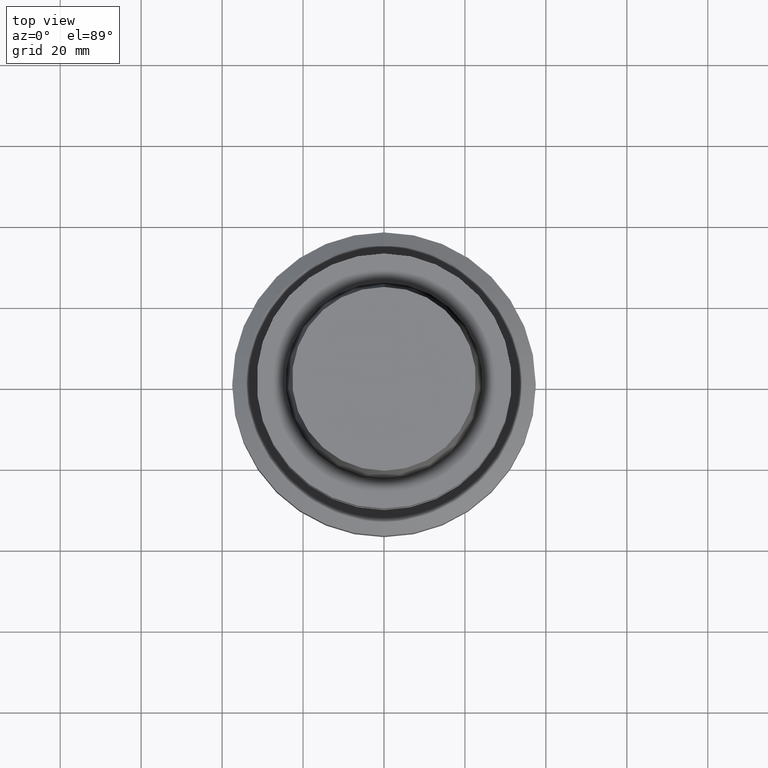
[diagram: clean part render]
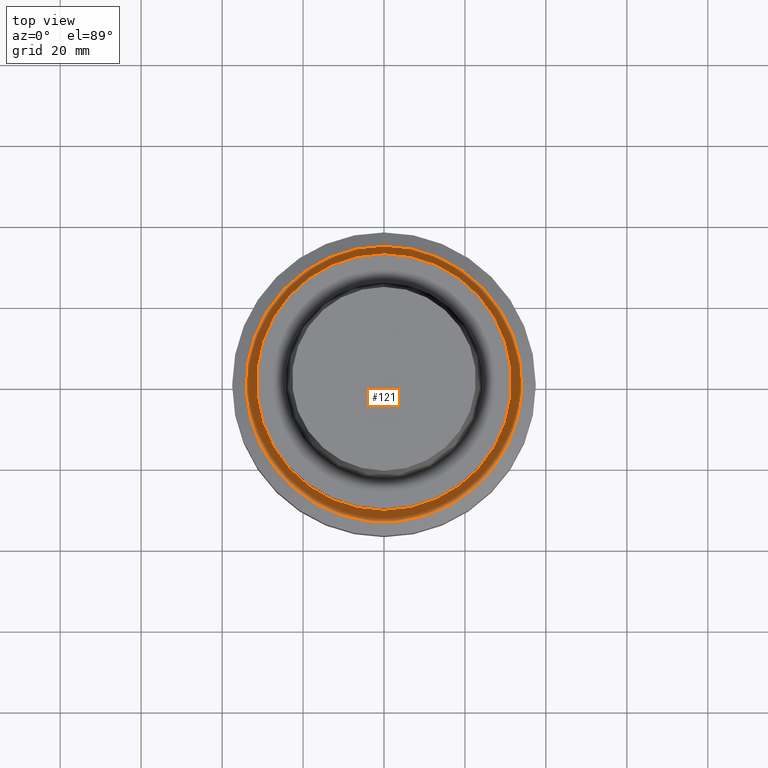
[diagram: same view with one face highlighted and labeled with its STEP entity id]
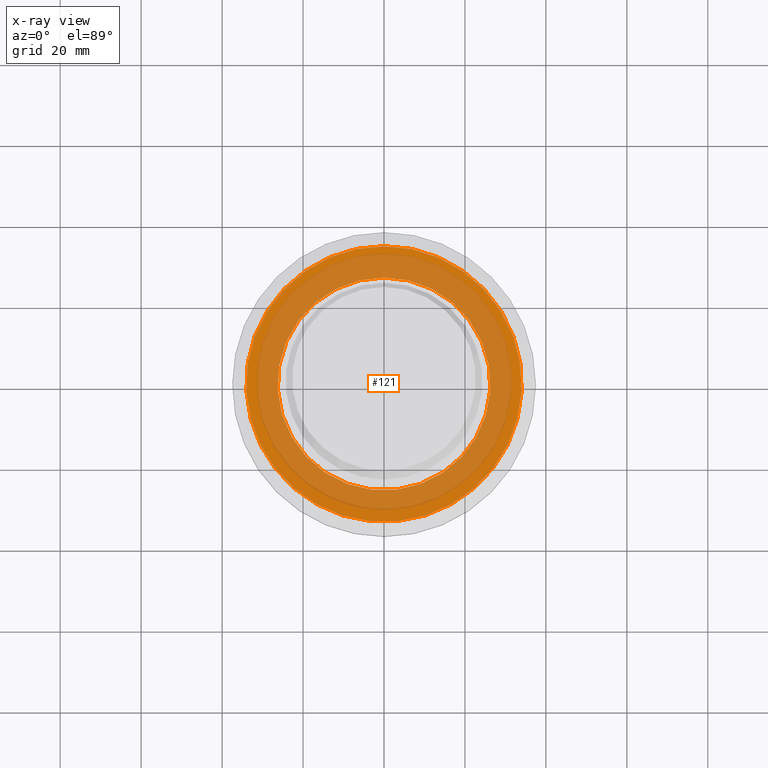
[diagram: x-ray of the same camera — body ghosted, the highlighted face saturated]
A machine part, top view. The second image highlights one B-rep face of the part: STEP entity #121.
The next image is the same camera in x-ray: the body ghosted, the highlighted face saturated — about 66% of this face is hidden behind the body in this view.
In plain terms, the highlighted planar face has unit normal (-0, 0, 1).
Its self-contained STEP definition (entity closure, byte-faithful):
#78=EDGE_CURVE('Unnamed[1]',#195,#195,#196,.T.);
#121=ADVANCED_FACE('Unnamed[1]',(#264,#265),#266,.T.);
#123=EDGE_CURVE('Unnamed[1]',#268,#268,#269,.T.);
#195=VERTEX_POINT('',#351);
#196=CIRCLE('',#352,34.0358983848624);
#264=FACE_BOUND('',#436,.T.);
#265=FACE_OUTER_BOUND('',#437,.T.);
#266=PLANE('',#438);
#268=VERTEX_POINT('',#441);
#269=CIRCLE('',#442,26.3);
#351=CARTESIAN_POINT('',(2.571758278207E-015,34.0358983848624,-41.9999999999601));
#352=AXIS2_PLACEMENT_3D('',#524,#525,#526);
#436=EDGE_LOOP('',(#603));
#437=EDGE_LOOP('',(#604));
#438=AXIS2_PLACEMENT_3D('',#605,#606,#607);
#441=CARTESIAN_POINT('',(2.571758278207E-015,26.3,-41.9999999999601));
#442=AXIS2_PLACEMENT_3D('',#608,#609,#610);
#524=CARTESIAN_POINT('',(2.571758278207E-015,5.14351655641399E-015,-41.9999999999601));
#525=DIRECTION('',(-6.12323399573677E-017,-1.2246467991478E-016,1.0));
#526=DIRECTION('',(-1.23259516440761E-032,1.0,1.2246467991478E-016));
#603=ORIENTED_EDGE('',*,*,#123,.F.);
#604=ORIENTED_EDGE('',*,*,#78,.T.);
#605=CARTESIAN_POINT('',(2.571758278207E-015,30.1679491924312,-41.9999999999601));
#606=DIRECTION('',(-6.12323399573677E-017,3.55153774571428E-015,1.0));
#607=DIRECTION('',(2.12641813886231E-031,1.0,-3.55153774571428E-015));
#608=CARTESIAN_POINT('',(2.571758278207E-015,5.14351655641399E-015,-41.9999999999601));
#609=DIRECTION('',(-6.12323399573677E-017,-1.22464679914732E-016,1.0));
#610=DIRECTION('',(-1.23259516440797E-032,1.0,1.22464679914732E-016));